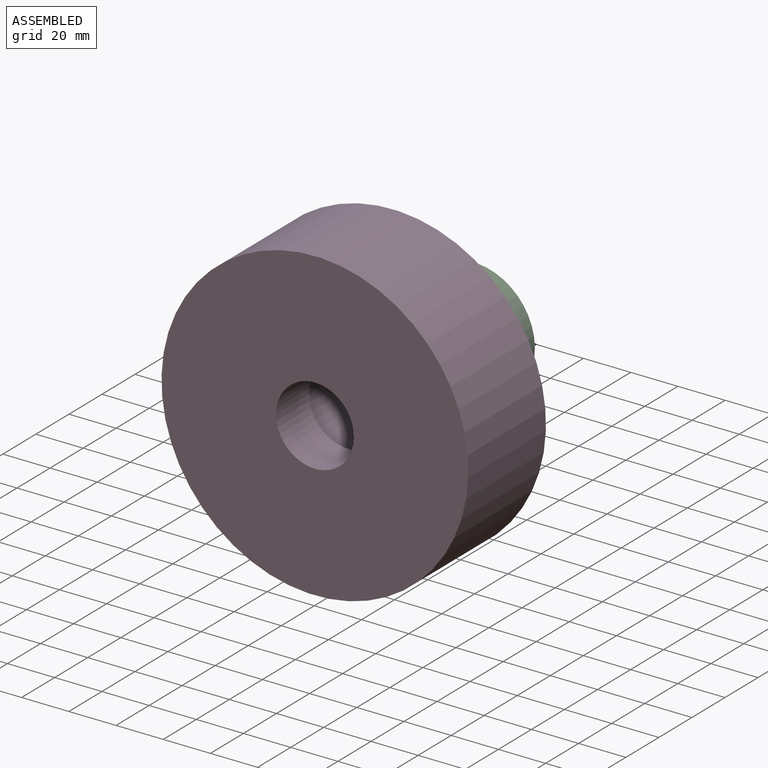
[diagram: assembled view]
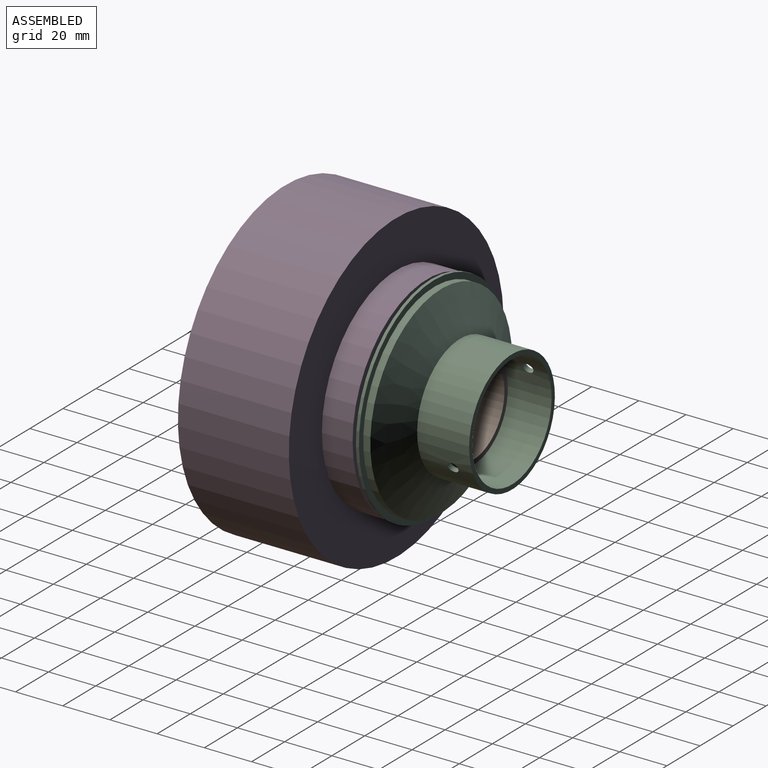
[diagram: assembled view, second angle]
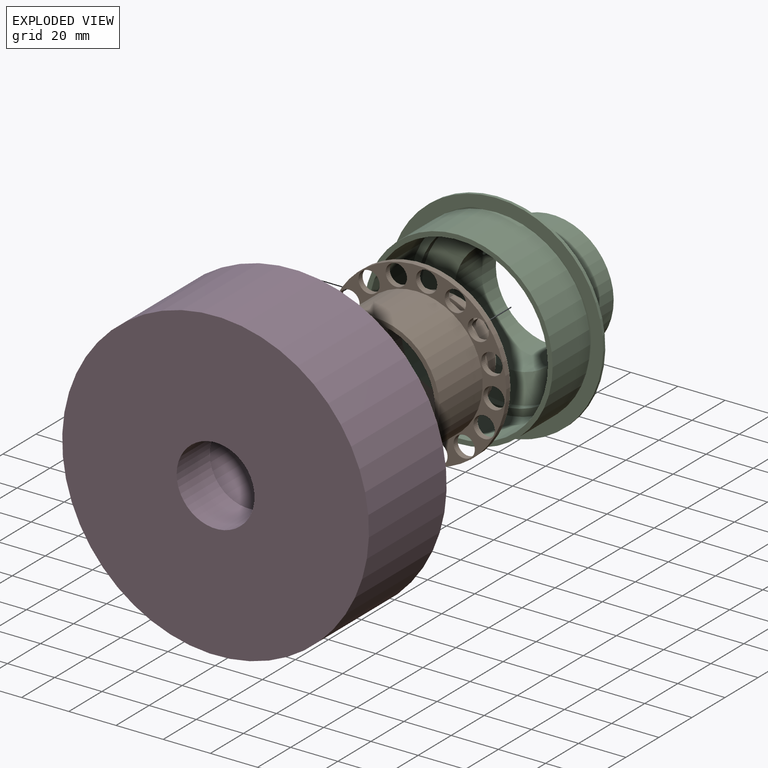
[diagram: exploded view]
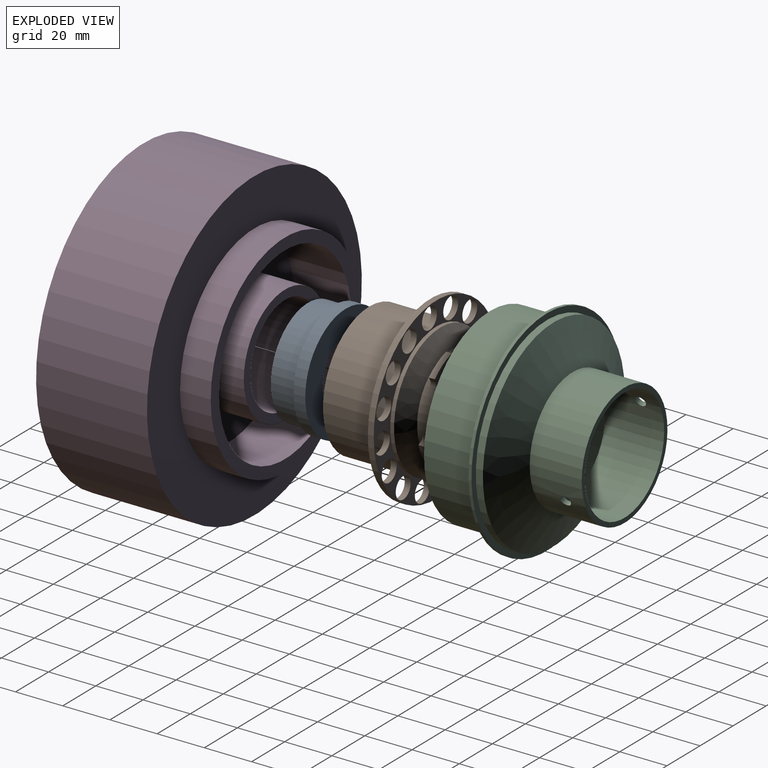
[diagram: exploded view, second angle]
ASSEMBLY  parts=4 mates=5
PART A: 8 faces, bbox 49x16x49 mm
  f0: cylinder r=14mm len=28mm, axis (0,-1,0), area 263.9mm2, adj f3,f6
  f1: cylinder r=24.5mm len=49mm, axis (0,1,0), area 769.7mm2, adj f3,f5
  f2: plane 45x45mm, normal (0,1,0), area 572.6mm2, adj f4,f7
  f3: plane 49x49mm, normal (0,-1,0), area 1270mm2, adj f0,f1
  f4: cylinder r=22.5mm len=45mm, axis (0,1,0), area 1555.1mm2, adj f2,f5
  f5: plane 49x49mm, normal (0,1,0), area 295.3mm2, adj f1,f4
  f6: plane 36x36mm, normal (0,1,0), area 402.1mm2, adj f0,f7
  f7: cylinder r=18mm len=36mm, axis (0,1,0), area 1470.3mm2, adj f2,f6
PART B: 56 faces, bbox 76x44x76 mm
  f0: cylinder r=38mm len=76mm, axis (0,-1,0), area 596.9mm2, adj f54,f55
  f1: cylinder r=4.5mm len=9mm, axis (0,1,0), area 70.7mm2, adj f54,f55
  f2: cylinder r=4.5mm len=9mm, axis (0,1,0), area 70.7mm2, adj f54,f55
  f3: cylinder r=4.5mm len=9mm, axis (0,1,0), area 70.7mm2, adj f54,f55
  f4: cylinder r=4.5mm len=9mm, axis (0,1,0), area 70.7mm2, adj f54,f55
  f5: cylinder r=4.5mm len=9mm, axis (0,1,0), area 70.7mm2, adj f54,f55
  f6: cylinder r=4.5mm len=9mm, axis (0,1,0), area 70.7mm2, adj f54,f55
  f7: cylinder r=4.5mm len=9mm, axis (0,1,0), area 70.7mm2, adj f54,f55
  f8: cylinder r=4.5mm len=9mm, axis (0,1,0), area 70.7mm2, adj f54,f55
  f9: cylinder r=4.5mm len=9mm, axis (0,1,0), area 70.7mm2, adj f54,f55
  f10: cylinder r=4.5mm len=9mm, axis (0,1,0), area 70.7mm2, adj f54,f55
  f11: cylinder r=4.5mm len=9mm, axis (0,1,0), area 70.7mm2, adj f54,f55
  f12: cylinder r=4.5mm len=9mm, axis (0,1,0), area 70.7mm2, adj f54,f55
  f13: cylinder r=4.5mm len=9mm, axis (0,1,0), area 70.7mm2, adj f54,f55
  f14: cylinder r=4.5mm len=9mm, axis (0,1,0), area 70.7mm2, adj f54,f55
  f15: cylinder r=4.5mm len=9mm, axis (0,1,0), area 70.7mm2, adj f54,f55
  f16: cylinder r=4.5mm len=9mm, axis (0,1,0), area 70.7mm2, adj f54,f55
  f17: plane 14.61x4.21mm, normal (0,-1,0), area 36mm2, adj f24,f37,f40,f45,f47,f51
  f18: plane 14.61x4.21mm, normal (0,-1,0), area 36mm2, adj f21,f37,f38,f44,f50,f52
  f19: plane 14.61x4.21mm, normal (0,-1,0), area 36mm2, adj f22,f37,f39,f42,f48,f53
  f20: plane 14.61x4.21mm, normal (0,-1,0), area 36mm2, adj f23,f37,f41,f43,f46,f49
  f21: cylinder r=23.9mm len=12mm, axis (0,-1,0), area 30.3mm2, adj f18,f25,f38,f44
  f22: cylinder r=23.9mm len=12mm, axis (0,-1,0), area 30.3mm2, adj f19,f26,f39,f42
  f23: cylinder r=23.9mm len=12mm, axis (0,-1,0), area 30.3mm2, adj f20,f27,f41,f43
  f24: cylinder r=23.9mm len=12mm, axis (0,-1,0), area 30.3mm2, adj f17,f28,f40,f45
  f25: plane 14.61x4.21mm, normal (0,1,0), area 36mm2, adj f21,f37,f38,f44,f50,f52
  f26: plane 14.61x4.21mm, normal (0,1,0), area 36mm2, adj f22,f37,f39,f42,f48,f53
  f27: plane 14.61x4.21mm, normal (0,1,0), area 36mm2, adj f23,f37,f41,f43,f46,f49
  f28: plane 14.61x4.21mm, normal (0,1,0), area 36mm2, adj f24,f37,f40,f45,f47,f51
  f29: plane 42x42mm, normal (0,1,0), area 251.3mm2, adj f30,f37
  f30: cylinder r=19mm len=38mm, axis (0,-1,0), area 1074.4mm2, adj f29,f31
  f31: cone r=19mm half-angle=45deg, axis (0,-1,0), area 1399.5mm2, adj f30,f32
  f32: cylinder r=26mm len=52mm, axis (0,-1,0), area 4574.2mm2, adj f31,f33
  f33: plane 56x56mm, normal (0,-1,0), area 339.3mm2, adj f32,f34
  f34: cylinder r=28mm len=56mm, axis (0,-1,0), area 4574.2mm2, adj f33,f55
  f35: cylinder r=28mm len=56mm, axis (0,-1,0), area 281.2mm2, adj f36,f54
  f36: cone r=21mm half-angle=55deg, axis (0,-1,0), area 1315.5mm2, adj f35,f37
  f37: cylinder r=21mm len=42mm, axis (0,-1,0), area 1038.3mm2, adj f17,f18,f19,f20,f25,f26,f27,f28
  f38: plane 2.5x1.57mm, normal (1,0,0), area 3.9mm2, adj f18,f21,f25,f52
  f39: plane 2.5x1.57mm, normal (0,0,1), area 3.9mm2, adj f19,f22,f26,f53
  f40: plane 2.5x1.57mm, normal (0,0,-1), area 3.9mm2, adj f17,f24,f28,f47
  f41: plane 2.5x1.57mm, normal (-1,0,0), area 3.9mm2, adj f20,f23,f27,f46
  f42: plane 2.5x1.57mm, normal (0,0,-1), area 3.9mm2, adj f19,f22,f26,f48
  f43: plane 2.5x1.57mm, normal (1,0,0), area 3.9mm2, adj f20,f23,f27,f49
  f44: plane 2.5x1.57mm, normal (-1,0,0), area 3.9mm2, adj f18,f21,f25,f50
  f45: plane 2.5x1.57mm, normal (0,0,1), area 3.9mm2, adj f17,f24,f28,f51
  f46: cylinder r=2mm len=2.5mm, axis (0,-1,0), area 6.1mm2, adj f20,f27,f37,f41
  f47: cylinder r=2mm len=2.5mm, axis (0,-1,0), area 6.1mm2, adj f17,f28,f37,f40
  f48: cylinder r=2mm len=2.5mm, axis (0,-1,0), area 6.1mm2, adj f19,f26,f37,f42
  f49: cylinder r=2mm len=2.5mm, axis (0,-1,0), area 6.1mm2, adj f20,f27,f37,f43
  f50: cylinder r=2mm len=2.5mm, axis (0,-1,0), area 6.1mm2, adj f18,f25,f37,f44
  f51: cylinder r=2mm len=2.5mm, axis (0,-1,0), area 6.1mm2, adj f17,f28,f37,f45
  f52: cylinder r=2mm len=2.5mm, axis (0,-1,0), area 6.1mm2, adj f18,f25,f37,f38
  f53: cylinder r=2mm len=2.5mm, axis (0,-1,0), area 6.1mm2, adj f19,f26,f37,f39
  f54: plane 76x76mm, normal (0,1,0), area 1055.6mm2, adj f0,f1,f2,f3,f4,f5,f6,f7
  f55: plane 76x76mm, normal (0,-1,0), area 1055.6mm2, adj f0,f1,f2,f3,f4,f5,f6,f7
PART C: 16 faces, bbox 91x57x91 mm
  f0: cylinder r=24mm len=48mm, axis (0,1,0), area 3738.1mm2, adj f8,f13,f14,f15
  f1: cylinder r=42.9mm len=85.8mm, axis (0,1,0), area 808.6mm2, adj f6,f9
  f2: cylinder r=45.5mm len=91mm, axis (0,1,0), area 371.7mm2, adj f4,f6
  f3: cylinder r=40mm len=80mm, axis (0,-1,0), area 5705.1mm2, adj f4,f5
  f4: plane 91x91mm, normal (0,-1,0), area 1477.3mm2, adj f2,f3
  f5: plane 80x80mm, normal (0,-1,0), area 490.1mm2, adj f3,f11
  f6: plane 91x91mm, normal (0,1,0), area 722.1mm2, adj f1,f2
  f7: cylinder r=25.95mm len=51.9mm, axis (0,1,0), area 3559.1mm2, adj f8,f9,f14,f15
  f8: plane 51.9x51.9mm, normal (0,1,0), area 306mm2, adj f0,f7
  f9: cone r=25.9mm half-angle=64.8deg, axis (0,-1,0), area 4051.9mm2, adj f1,f7
  f10: plane 76x76mm, normal (0,-1,0), area 688mm2, adj f11,f12
  f11: cylinder r=38mm len=76mm, axis (0,-1,0), area 5969mm2, adj f5,f10
  f12: cylinder r=35mm len=70mm, axis (0,-1,0), area 659.7mm2, adj f10,f13
  f13: cone r=35mm half-angle=70deg, axis (0,-1,0), area 2169.5mm2, adj f0,f12
  f14: cylinder r=2.25mm len=4.5mm, axis (0,0,1), area 27.6mm2, adj f0,f7
  f15: cylinder r=2.25mm len=4.5mm, axis (0,0,1), area 27.6mm2, adj f0,f7
PART D: 12 faces, bbox 130x130x60 mm
  f0: cylinder r=65mm len=130mm, axis (0,0,-1), area 19195.1mm2, adj f1,f3
  f1: plane 130x130mm, normal (0,0,-1), area 12417.9mm2, adj f0,f11
  f2: cylinder r=45mm len=90mm, axis (0,0,1), area 3675.7mm2, adj f3,f4
  f3: plane 130x130mm, normal (0,0,1), area 6911.5mm2, adj f0,f2
  f4: plane 90x90mm, normal (0,0,1), area 1335.2mm2, adj f2,f6
  f5: cylinder r=25mm len=50mm, axis (0,0,1), area 3769.9mm2, adj f7,f8
  f6: cylinder r=40mm len=80mm, axis (0,0,1), area 6031.9mm2, adj f4,f7
  f7: plane 80x80mm, normal (0,0,1), area 3063.1mm2, adj f5,f6
  f8: plane 50x50mm, normal (0,0,1), area 578.1mm2, adj f5,f9
  f9: cylinder r=21mm len=42mm, axis (0,0,1), area 5277.9mm2, adj f8,f10
  f10: plane 42x42mm, normal (0,0,1), area 530.1mm2, adj f9,f11
  f11: cylinder r=16.5mm len=33mm, axis (0,0,1), area 2073.5mm2, adj f1,f10
PLACE A rot(axis=(-0.5,0,0.87),180deg) t=(79.1,-189.34,11.93)mm
PLACE B rot(axis=(0,-1,0),60.1deg) t=(79.1,-202.79,11.93)mm
PLACE C rot(axis=(0,-1,0),65.4deg) t=(79.1,-142.29,11.93)mm
PLACE D rot(axis=(-0.98,0.15,0.15),91.3deg) t=(79.1,-238.34,11.93)mm fixed
MATE cylindrical B.f0 <-> C.f11  axis (0,-1,0) through (79.1,-175.54,11.93)mm
MATE cylindrical D.f6 <-> C.f3  axis (0,1,0) through (79.1,-190.34,11.93)mm
MATE planar C.f11 <-> B.f0  axis (0,-1,0) through (79.1,-174.29,11.93)mm
MATE cylindrical B.f0 <-> A.f1  axis (0,-1,0) through (79.1,-188.79,11.93)mm
MATE planar A.f1 <-> D.f0  axis (0,-1,0) through (79.1,-178.34,11.93)mm
